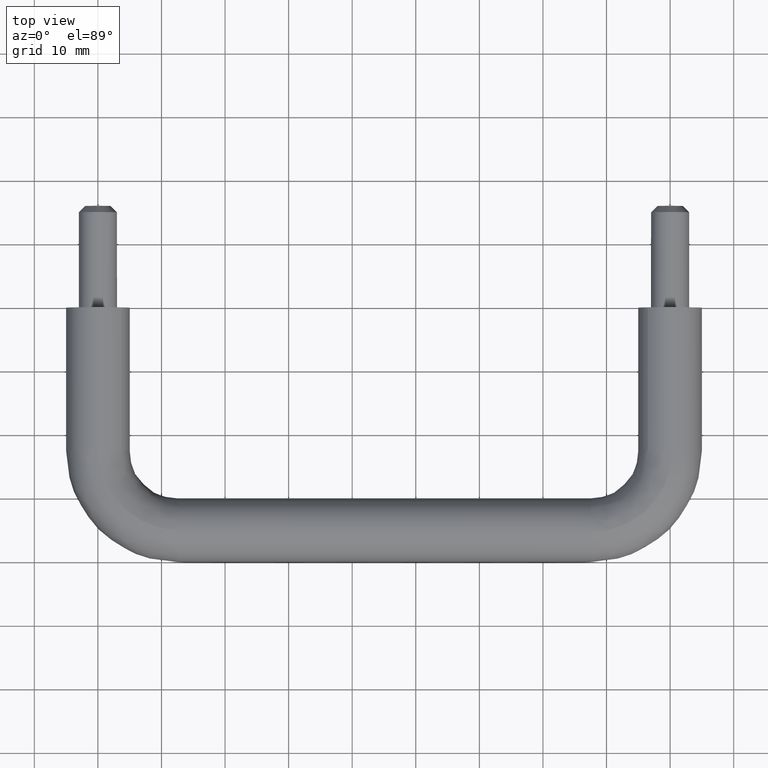
[diagram: clean part render]
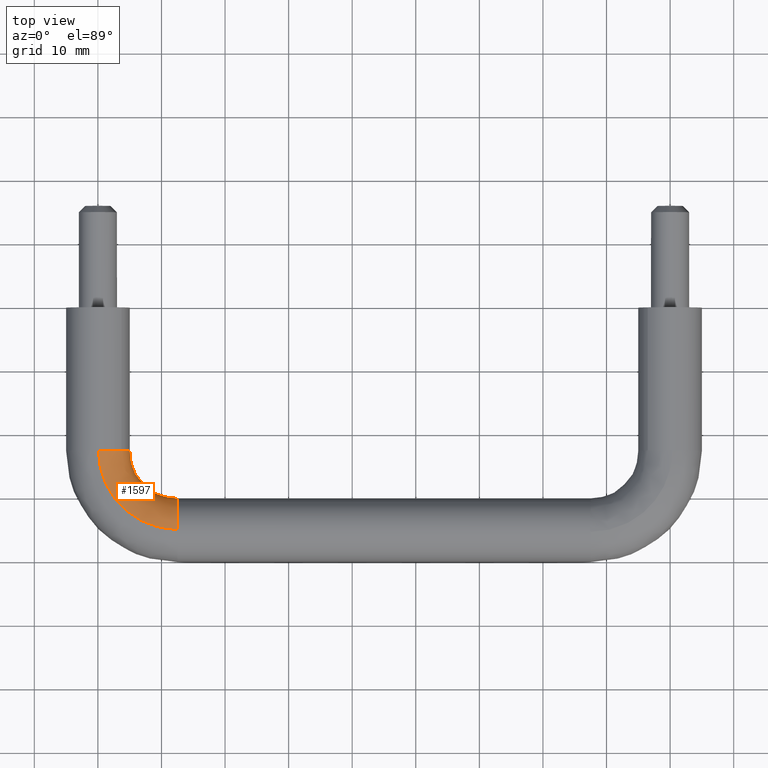
[diagram: same view with one face highlighted and labeled with its STEP entity id]
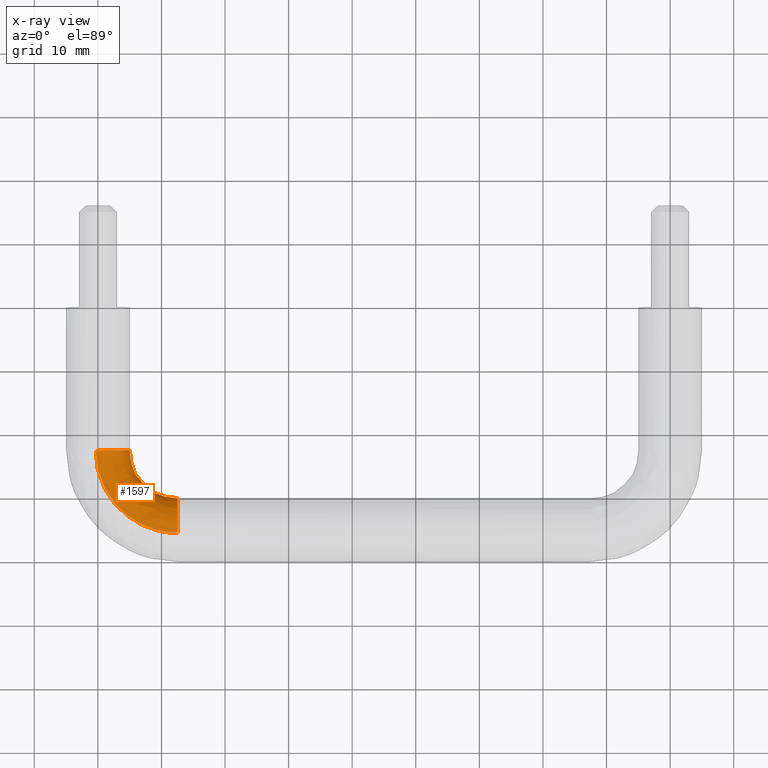
[diagram: x-ray of the same camera — body ghosted, the highlighted face saturated]
A machine part, top view. The second image highlights one B-rep face of the part: STEP entity #1597.
The next image is the same camera in x-ray: the body ghosted, the highlighted face saturated — about 0% of this face is hidden behind the body in this view.
In plain terms, the highlighted face is a freeform B-spline surface patch.
Its self-contained STEP definition (entity closure, byte-faithful):
#973=CARTESIAN_POINT('',(12.499999999953680,-30.521972536862169,2.224245948412617));
#974=VERTEX_POINT('',#973);
#980=CARTESIAN_POINT('',(12.499999999561890,-34.937169799832191,4.999605221009642));
#981=VERTEX_POINT('',#980);
#982=CARTESIAN_POINT('',(12.499999999953678,-30.521972536862165,2.224245948412617));
#983=CARTESIAN_POINT('',(12.499999999833049,-31.881425326449012,4.961203581133596));
#984=CARTESIAN_POINT('',(12.499999999561895,-34.937169799832198,4.999605221009642));
#992=(BOUNDED_CURVE()B_SPLINE_CURVE(2,(#982,#983,#984),.UNSPECIFIED.,.F.,.U.)B_SPLINE_CURVE_WITH_KNOTS((3,3),(0.575619190622622,0.747784295868891),.UNSPECIFIED.)CURVE()GEOMETRIC_REPRESENTATION_ITEM()RATIONAL_B_SPLINE_CURVE((0.876408099968349,0.796725658660789,0.994854295522402))REPRESENTATION_ITEM(''));
#993=EDGE_CURVE('',#974,#981,#992,.T.);
#1012=CARTESIAN_POINT('',(12.499999999937820,-35.348666258244499,-4.987828369176487));
#1013=VERTEX_POINT('',#1012);
#1027=CARTESIAN_POINT('',(12.500000000000000,-31.558228069350712,-3.626872754508066));
#1028=VERTEX_POINT('',#1027);
#1029=CARTESIAN_POINT('',(12.499999999937817,-35.348666258244492,-4.987828369176487));
#1030=CARTESIAN_POINT('',(12.499999999999995,-35.174545579742194,-5.000000000000001));
#1031=CARTESIAN_POINT('',(12.500000000000000,-35.0,-5.0));
#1032=CARTESIAN_POINT('',(12.499999999999995,-33.005203027452310,-5.0));
#1033=CARTESIAN_POINT('',(12.500000000000007,-31.558228069350704,-3.626872754508066));
#1041=(BOUNDED_CURVE()B_SPLINE_CURVE(2,(#1029,#1030,#1031,#1032,#1033),.UNSPECIFIED.,.F.,.U.)B_SPLINE_CURVE_WITH_KNOTS((3,2,3),(0.237833686509806,0.250000000000000,0.371049487220299),.UNSPECIFIED.)CURVE()GEOMETRIC_REPRESENTATION_ITEM()RATIONAL_B_SPLINE_CURVE((0.972879876333494,0.985746277123054,1.0,0.858181704209315,0.853699664289983))REPRESENTATION_ITEM(''));
#1042=EDGE_CURVE('',#1013,#1028,#1041,.T.);
#1142=CARTESIAN_POINT('',(12.500000000000000,-30.0,0.0));
#1143=VERTEX_POINT('',#1142);
#1144=CARTESIAN_POINT('',(12.500000000000007,-31.558228069350704,-3.626872754508066));
#1145=CARTESIAN_POINT('',(12.500000000000000,-30.000000000000007,-2.148170303760609));
#1146=CARTESIAN_POINT('',(12.500000000000000,-30.0,0.0));
#1154=(BOUNDED_CURVE()B_SPLINE_CURVE(2,(#1144,#1145,#1146),.UNSPECIFIED.,.F.,.U.)B_SPLINE_CURVE_WITH_KNOTS((3,3),(0.371049487220299,0.500000000000000),.UNSPECIFIED.)CURVE()GEOMETRIC_REPRESENTATION_ITEM()RATIONAL_B_SPLINE_CURVE((0.853699664289983,0.848925076977233,1.0))REPRESENTATION_ITEM(''));
#1155=EDGE_CURVE('',#1028,#1143,#1154,.T.);
#1157=CARTESIAN_POINT('',(12.500000000000000,-30.0,0.0));
#1158=CARTESIAN_POINT('',(12.500000000000004,-30.000000000000004,1.173369647353840));
#1159=CARTESIAN_POINT('',(12.499999999953683,-30.521972536862169,2.224245948412617));
#1167=(BOUNDED_CURVE()B_SPLINE_CURVE(2,(#1157,#1158,#1159),.UNSPECIFIED.,.F.,.U.)B_SPLINE_CURVE_WITH_KNOTS((3,3),(0.500000000000000,0.575619190622622),.UNSPECIFIED.)CURVE()GEOMETRIC_REPRESENTATION_ITEM()RATIONAL_B_SPLINE_CURVE((1.0,0.911406607417888,0.876408099968349))REPRESENTATION_ITEM(''));
#1168=EDGE_CURVE('',#1143,#974,#1167,.T.);
#1192=CARTESIAN_POINT('',(2.421098661283421,-22.500000000000000,-4.374732137209275));
#1193=VERTEX_POINT('',#1192);
#1194=CARTESIAN_POINT('',(5.000000000000003,-22.500000000000000,0.0));
#1195=VERTEX_POINT('',#1194);
#1196=CARTESIAN_POINT('',(2.421098661283421,-22.500000000000000,-4.374732137209274));
#1197=CARTESIAN_POINT('',(5.000000000000004,-22.500000000000004,-2.947496278428088));
#1198=CARTESIAN_POINT('',(5.000000000000003,-22.500000000000000,0.0));
#1206=(BOUNDED_CURVE()B_SPLINE_CURVE(2,(#1196,#1197,#1198),.UNSPECIFIED.,.F.,.U.)B_SPLINE_CURVE_WITH_KNOTS((3,3),(0.332484288971452,0.500000000000000),.UNSPECIFIED.)CURVE()GEOMETRIC_REPRESENTATION_ITEM()RATIONAL_B_SPLINE_CURVE((0.870495137452311,0.803743136780097,1.0))REPRESENTATION_ITEM(''));
#1207=EDGE_CURVE('',#1193,#1195,#1206,.T.);
#1246=CARTESIAN_POINT('',(3.686388266946610,-22.500000000198909,3.377949310456422));
#1247=VERTEX_POINT('',#1246);
#1253=CARTESIAN_POINT('',(5.000000000000003,-22.500000000000000,0.0));
#1254=CARTESIAN_POINT('',(5.000000000000002,-22.499999999999993,1.944392310390173));
#1255=CARTESIAN_POINT('',(3.686388266946610,-22.500000000198916,3.377949310456422));
#1263=(BOUNDED_CURVE()B_SPLINE_CURVE(2,(#1253,#1254,#1255),.UNSPECIFIED.,.F.,.U.)B_SPLINE_CURVE_WITH_KNOTS((3,3),(0.500000000000000,0.618415138332962),.UNSPECIFIED.)CURVE()GEOMETRIC_REPRESENTATION_ITEM()RATIONAL_B_SPLINE_CURVE((1.0,0.861268035909674,0.853959789571024))REPRESENTATION_ITEM(''));
#1264=EDGE_CURVE('',#1195,#1247,#1263,.T.);
#1291=CARTESIAN_POINT('',(-0.348666258442994,-22.500000000118920,-4.987828369162610));
#1292=VERTEX_POINT('',#1291);
#1293=CARTESIAN_POINT('',(-0.348666258442994,-22.500000000118916,-4.987828369162610));
#1294=CARTESIAN_POINT('',(-0.174545579941415,-22.499999999999996,-5.0));
#1295=CARTESIAN_POINT('',(2.755364E-015,-22.500000000000000,-5.0));
#1296=CARTESIAN_POINT('',(1.291289514122229,-22.500000000000000,-5.000000000000001));
#1297=CARTESIAN_POINT('',(2.421098661283422,-22.500000000000000,-4.374732137209276));
#1305=(BOUNDED_CURVE()B_SPLINE_CURVE(2,(#1293,#1294,#1295,#1296,#1297),.UNSPECIFIED.,.F.,.U.)B_SPLINE_CURVE_WITH_KNOTS((3,2,3),(0.237833686496117,0.250000000000000,0.332484288971452),.UNSPECIFIED.)CURVE()GEOMETRIC_REPRESENTATION_ITEM()RATIONAL_B_SPLINE_CURVE((0.972879876304542,0.985746277107017,1.0,0.903363644406450,0.870495137452311))REPRESENTATION_ITEM(''));
#1306=EDGE_CURVE('',#1292,#1193,#1305,.T.);
#1323=CARTESIAN_POINT('',(0.062830200757490,-22.500000000747580,4.999605221002231));
#1324=VERTEX_POINT('',#1323);
#1340=CARTESIAN_POINT('',(3.686388266946610,-22.500000000198916,3.377949310456422));
#1341=CARTESIAN_POINT('',(2.225318043479608,-22.500000000420144,4.972429165656325));
#1342=CARTESIAN_POINT('',(0.062830200757490,-22.500000000747580,4.999605221002231));
#1350=(BOUNDED_CURVE()B_SPLINE_CURVE(2,(#1340,#1341,#1342),.UNSPECIFIED.,.F.,.U.)B_SPLINE_CURVE_WITH_KNOTS((3,3),(0.618415138332962,0.747784295827405),.UNSPECIFIED.)CURVE()GEOMETRIC_REPRESENTATION_ITEM()RATIONAL_B_SPLINE_CURVE((0.853959789571024,0.845975492251415,0.994854295426916))REPRESENTATION_ITEM(''));
#1351=EDGE_CURVE('',#1247,#1324,#1350,.T.);
#1525=CARTESIAN_POINT('',(0.062830200757490,-22.500000000747580,4.999605221002231));
#1526=CARTESIAN_POINT('',(0.062830200911937,-34.937169799707000,4.999605221019078));
#1527=CARTESIAN_POINT('',(12.499999999561899,-34.937169799832198,4.999605221009642));
#1535=(BOUNDED_CURVE()B_SPLINE_CURVE(2,(#1525,#1526,#1527),.UNSPECIFIED.,.F.,.U.)B_SPLINE_CURVE_WITH_KNOTS((3,3),(-1.747842683543663,-0.278273131019156),.UNSPECIFIED.)CURVE()GEOMETRIC_REPRESENTATION_ITEM()RATIONAL_B_SPLINE_CURVE((0.893710737918789,0.628668022924493,0.884455039429879))REPRESENTATION_ITEM(''));
#1536=EDGE_CURVE('',#1324,#981,#1535,.T.);
#1540=CARTESIAN_POINT('',(-0.348666258442994,-22.500000000118920,-4.987828369162610));
#1541=CARTESIAN_POINT('',(-0.348666257639366,-35.348666257752846,-4.987828369202161));
#1542=CARTESIAN_POINT('',(12.499999999937815,-35.348666258244499,-4.987828369176488));
#1550=(BOUNDED_CURVE()B_SPLINE_CURVE(2,(#1540,#1541,#1542),.UNSPECIFIED.,.F.,.U.)B_SPLINE_CURVE_WITH_KNOTS((3,3),(-1.747842683649903,-0.278273130956331),.UNSPECIFIED.)CURVE()GEOMETRIC_REPRESENTATION_ITEM()RATIONAL_B_SPLINE_CURVE((0.873607430585968,0.614526639153945,0.864559931606567))REPRESENTATION_ITEM(''));
#1551=EDGE_CURVE('',#1292,#1013,#1550,.T.);
#1556=CARTESIAN_POINT('',(0.092613886507801,-21.639789282059059,4.999605221019078));
#1557=CARTESIAN_POINT('',(-0.896508098610297,-35.906547562030340,4.999605221019078));
#1558=CARTESIAN_POINT('',(13.369505199015805,-34.906738223942021,4.999605221019078));
#1559=CARTESIAN_POINT('',(5.080246393487504,-21.985584512449204,4.936775021602315));
#1560=CARTESIAN_POINT('',(4.488740547757428,-30.517263161987476,4.936775021602317));
#1561=CARTESIAN_POINT('',(13.019973689644695,-29.919366161422730,4.936775021602316));
#1562=CARTESIAN_POINT('',(5.017566655552677,-21.981238892680782,-0.062830199416763));
#1563=CARTESIAN_POINT('',(4.421063955026138,-30.584990472164840,-0.062830199416763));
#1564=CARTESIAN_POINT('',(13.024366263351093,-29.982042626343656,-0.062830199416763));
#1565=CARTESIAN_POINT('',(4.954886917617852,-21.976893272912356,-5.062435420435842));
#1566=CARTESIAN_POINT('',(4.353387362294850,-30.652717782342219,-5.062435420435843));
#1567=CARTESIAN_POINT('',(13.028758837057495,-30.044719091264589,-5.062435420435841));
#1568=CARTESIAN_POINT('',(-0.032745589361852,-21.631098042522197,-4.999605221019078));
#1569=CARTESIAN_POINT('',(-1.031861284072877,-36.042002182385090,-4.999605221019078));
#1570=CARTESIAN_POINT('',(13.378290346428601,-35.032091153783874,-4.999605221019078));
#1571=CARTESIAN_POINT('',(-0.175489351134784,-21.621201541142050,-4.997807049440652));
#1572=CARTESIAN_POINT('',(-1.185984637946560,-36.196241037683627,-4.997807049440652));
#1573=CARTESIAN_POINT('',(13.388293778404794,-35.174827461755434,-4.997807049440652));
#1574=CARTESIAN_POINT('',(-0.317896872482902,-21.611328351490460,-4.987828388444838));
#1575=CARTESIAN_POINT('',(-1.339744946168815,-36.350116575261055,-4.987828388444838));
#1576=CARTESIAN_POINT('',(13.398273646771797,-35.317227546860011,-4.987828388444837));
#1584=(BOUNDED_SURFACE()B_SPLINE_SURFACE(2,2,((#1556,#1559,#1562,#1565,#1568,#1571,#1574),(#1557,#1560,#1563,#1566,#1569,#1572,#1575),(#1558,#1561,#1564,#1567,#1570,#1573,#1576)),.UNSPECIFIED.,.F.,.F.,.U.)B_SPLINE_SURFACE_WITH_KNOTS((3,3),(3,2,2,3),(0.0,23.414888567449012),(0.0,8.284271247461900,16.568542494923800,16.899913028802409),.UNSPECIFIED.)GEOMETRIC_REPRESENTATION_ITEM()RATIONAL_B_SPLINE_SURFACE(((0.921487970695580,0.651590392860676,0.921487970695580,0.651590392860676,0.921487970695580,0.910692077877960,0.900759855662087),(0.601353110281207,0.425220862167464,0.601353110281207,0.425220862167464,0.601353110281207,0.594307827075570,0.587826165988871),(0.911307631818076,0.644391806205615,0.911307631818076,0.644391806205615,0.911307631818076,0.900631008975608,0.890808515145976)))REPRESENTATION_ITEM('')SURFACE());
#1585=ORIENTED_EDGE('',*,*,#1155,.F.);
#1586=ORIENTED_EDGE('',*,*,#1042,.F.);
#1587=ORIENTED_EDGE('',*,*,#1551,.F.);
#1588=ORIENTED_EDGE('',*,*,#1306,.T.);
#1589=ORIENTED_EDGE('',*,*,#1207,.T.);
#1590=ORIENTED_EDGE('',*,*,#1264,.T.);
#1591=ORIENTED_EDGE('',*,*,#1351,.T.);
#1592=ORIENTED_EDGE('',*,*,#1536,.T.);
#1593=ORIENTED_EDGE('',*,*,#993,.F.);
#1594=ORIENTED_EDGE('',*,*,#1168,.F.);
#1595=EDGE_LOOP('',(#1585,#1586,#1587,#1588,#1589,#1590,#1591,#1592,#1593,#1594));
#1596=FACE_OUTER_BOUND('',#1595,.T.);
#1597=ADVANCED_FACE('',(#1596),#1584,.T.);